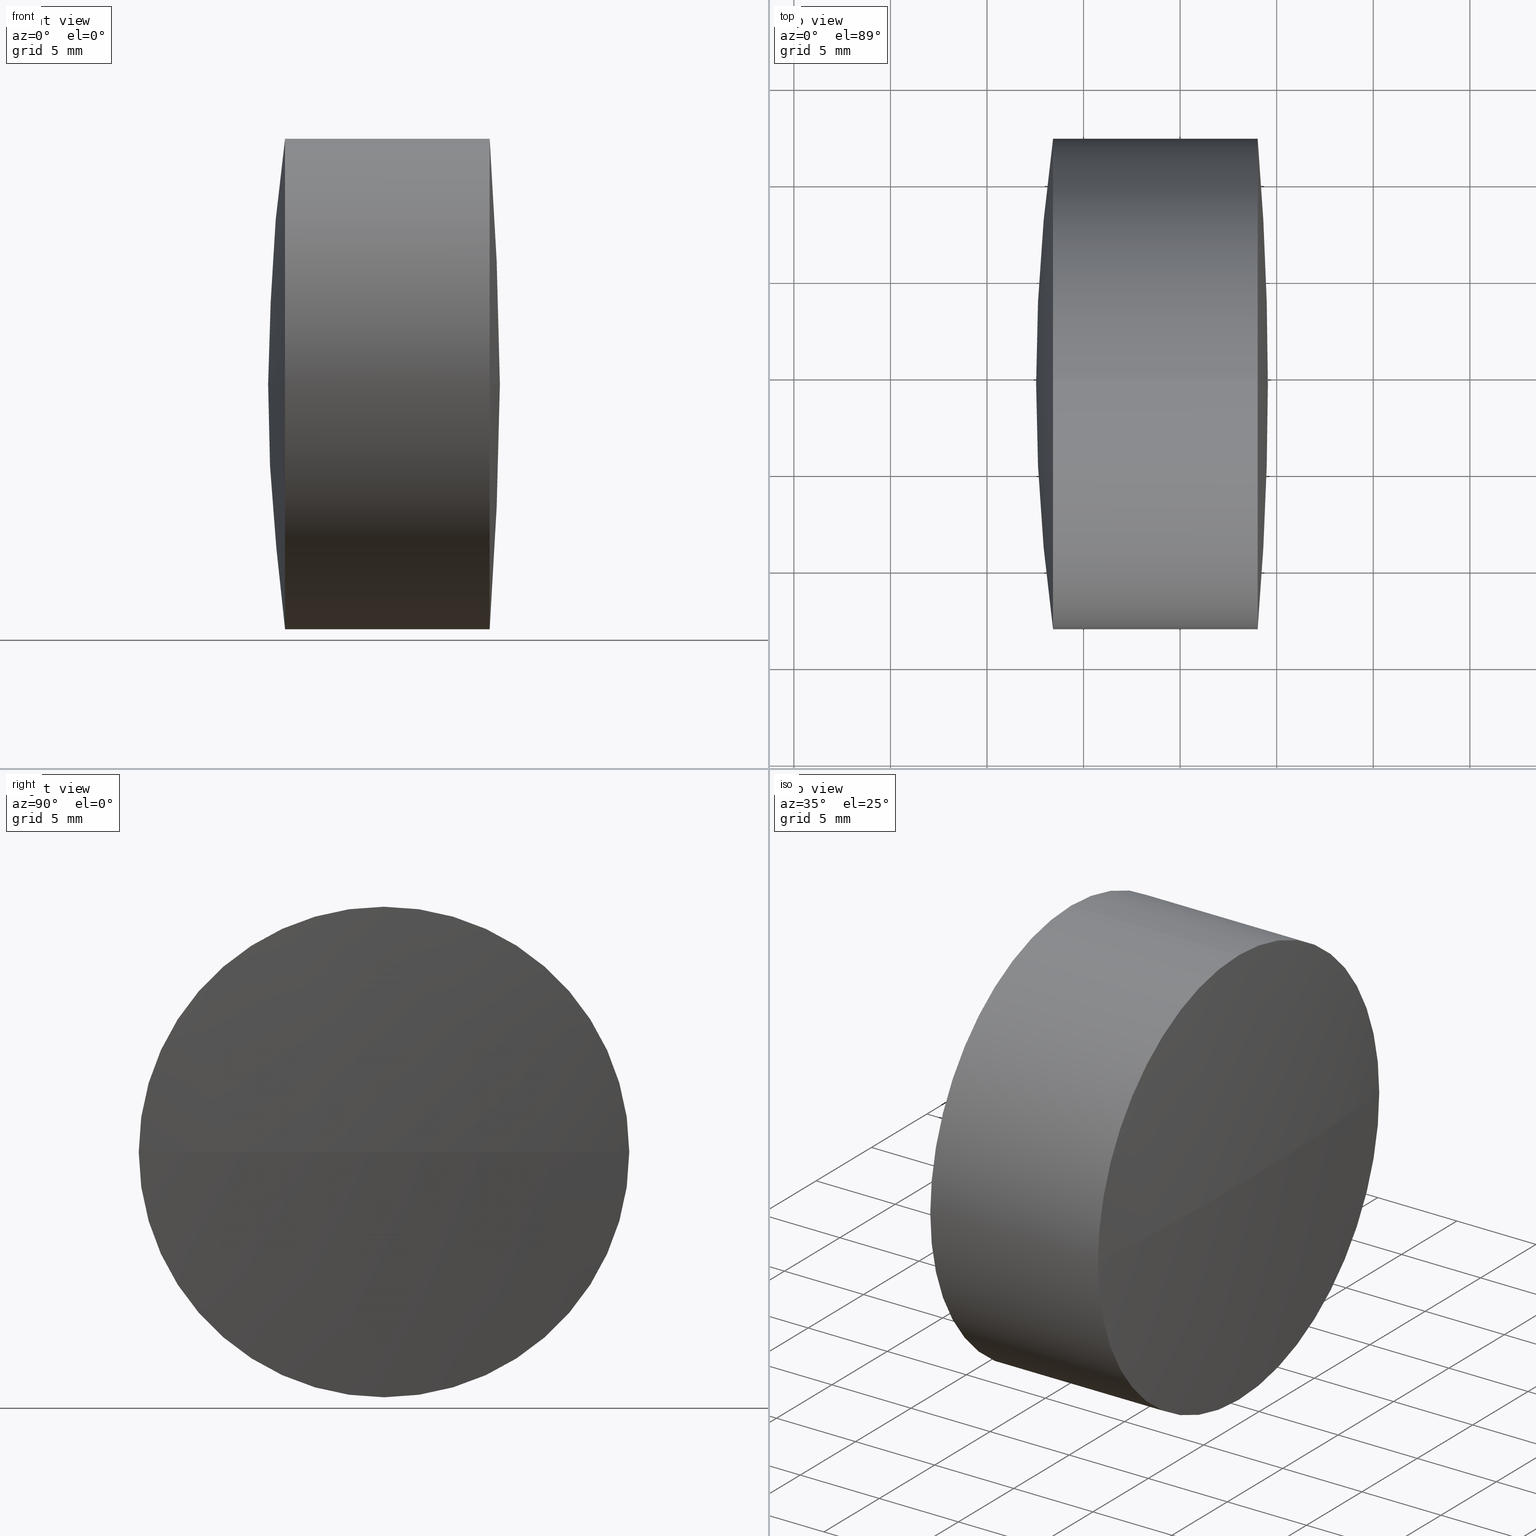
[diagram: canonical four-view strip — front | top / right | iso, engineering-drawing reading convention]
A machine part, canonical four-view strip (front | top / right | iso — engineering-drawing reading convention). The complete STEP part file that produces these views, byte-faithful:
ISO-10303-21;
HEADER;
FILE_DESCRIPTION (( 'STEP AP203' ),
    '1' );
FILE_NAME ('145278.STEP',
    '2024-05-11T08:22:23',
    ( '' ),
    ( '' ),
    'SwSTEP 2.0',
    'SolidWorks 2020',
    '' );
FILE_SCHEMA (( 'CONFIG_CONTROL_DESIGN' ));
ENDSEC;

DATA;
#1 = MANIFOLD_SOLID_BREP ( '145278a-1-solid1', #385 ) ;
#2 = CIRCLE ( 'NONE', #123, 48.17999999999999972 ) ;
#3 = AXIS2_PLACEMENT_3D ( 'NONE', #295, #85, #160 ) ;
#4 = DIRECTION ( 'NONE',  ( -1.000000000000000000, -0.000000000000000000, -0.000000000000000000 ) ) ;
#5 = ORIENTED_EDGE ( 'NONE', *, *, #72, .T. ) ;
#6 = CARTESIAN_POINT ( 'NONE',  ( -90.98594420630271884, 14.56038547118956927, 0.000000000000000000 ) ) ;
#7 = PRODUCT ( '145278', '145278', '', ( #93 ) ) ;
#8 = VERTEX_POINT ( 'NONE', #307 ) ;
#9 = VERTEX_POINT ( 'NONE', #135 ) ;
#10 = FACE_OUTER_BOUND ( 'NONE', #413, .T. ) ;
#11 = APPROVAL_PERSON_ORGANIZATION ( #234, #74, #297 ) ;
#12 = ORIENTED_EDGE ( 'NONE', *, *, #36, .F. ) ;
#13 = DIRECTION ( 'NONE',  ( -0.000000000000000000, 0.000000000000000000, 1.000000000000000000 ) ) ;
#14 = CARTESIAN_POINT ( 'NONE',  ( -96.16127642721875191, 27.26038547118956501, 0.000000000000000000 ) ) ;
#15 = VERTEX_POINT ( 'NONE', #348 ) ;
#16 = EDGE_CURVE ( 'NONE', #212, #103, #419, .T. ) ;
#17 = DIRECTION ( 'NONE',  ( 0.000000000000000000, 0.000000000000000000, 1.000000000000000000 ) ) ;
#18 = CARTESIAN_POINT ( 'NONE',  ( -96.16127642721875191, 14.56038547118957105, -12.69999999999999929 ) ) ;
#19 = DIRECTION ( 'NONE',  ( 0.000000000000000000, 1.224646799147353207E-16, -1.000000000000000000 ) ) ;
#20 = CARTESIAN_POINT ( 'NONE',  ( -90.98594420630271884, 14.56038547118956927, 0.000000000000000000 ) ) ;
#21 = DIRECTION ( 'NONE',  ( -0.000000000000000000, 0.000000000000000000, -1.000000000000000000 ) ) ;
#22 = APPROVAL_DATE_TIME ( #201, #351 ) ;
#23 = DIRECTION ( 'NONE',  ( 0.000000000000000000, 0.000000000000000000, 1.000000000000000000 ) ) ;
#24 = SPHERICAL_SURFACE ( 'NONE', #266, 48.17999999999999972 ) ;
#25 = PERSON_AND_ORGANIZATION ( #176, #395 ) ;
#26 = CIRCLE ( 'NONE', #374, 48.17999999999999972 ) ;
#27 = AXIS2_PLACEMENT_3D ( 'NONE', #327, #365, #156 ) ;
#28 = CARTESIAN_POINT ( 'NONE',  ( -243.2773175667133785, 14.56038547118956927, 0.000000000000000000 ) ) ;
#29 = APPROVAL_STATUS ( 'not_yet_approved' ) ;
#30 = CALENDAR_DATE ( 2024, 11, 5 ) ;
#31 = ORIENTED_EDGE ( 'NONE', *, *, #279, .T. ) ;
#32 = CARTESIAN_POINT ( 'NONE',  ( -142.6373175667134205, 14.56038547118956927, 0.000000000000000000 ) ) ;
#33 = CIRCLE ( 'NONE', #27, 12.69999999999999929 ) ;
#34 = ORIENTED_EDGE ( 'NONE', *, *, #446, .T. ) ;
#35 = EDGE_CURVE ( 'NONE', #250, #46, #225, .T. ) ;
#36 = EDGE_CURVE ( 'NONE', #220, #15, #314, .T. ) ;
#37 = DIRECTION ( 'NONE',  ( 0.000000000000000000, 0.000000000000000000, 1.000000000000000000 ) ) ;
#38 = LOCAL_TIME ( 16, 22, 23.00000000000000000, #439 ) ;
#39 = DIRECTION ( 'NONE',  ( -1.000000000000000000, -0.000000000000000000, -0.000000000000000000 ) ) ;
#40 = EDGE_CURVE ( 'NONE', #276, #412, #244, .T. ) ;
#41 = VECTOR ( 'NONE', #228, 1000.000000000000000 ) ;
#42 = CC_DESIGN_PERSON_AND_ORGANIZATION_ASSIGNMENT ( #25, #333, ( #423 ) ) ;
#43 = ORIENTED_EDGE ( 'NONE', *, *, #316, .F. ) ;
#44 = DIRECTION ( 'NONE',  ( 0.000000000000000000, 1.000000000000000000, 1.224646799147353207E-16 ) ) ;
#45 = VERTEX_POINT ( 'NONE', #64 ) ;
#46 = VERTEX_POINT ( 'NONE', #203 ) ;
#47 = CARTESIAN_POINT ( 'NONE',  ( -142.6373175667134205, 14.56038547118956927, 0.000000000000000000 ) ) ;
#48 = CC_DESIGN_APPROVAL ( #74, ( #423 ) ) ;
#49 = CARTESIAN_POINT ( 'NONE',  ( -90.98594420630271884, 14.56038547118957105, -12.69999999999999929 ) ) ;
#50 = ORIENTED_EDGE ( 'NONE', *, *, #446, .F. ) ;
#51 = CARTESIAN_POINT ( 'NONE',  ( -102.4573175667134137, 14.56038547118956927, 0.000000000000000000 ) ) ;
#52 = AXIS2_PLACEMENT_3D ( 'NONE', #270, #69, #37 ) ;
#53 =( NAMED_UNIT ( * ) SI_UNIT ( $, .STERADIAN. ) SOLID_ANGLE_UNIT ( ) );
#54 = CARTESIAN_POINT ( 'NONE',  ( -102.4573175667134137, 14.56038547118956927, 12.69999999999999929 ) ) ;
#55 = FACE_OUTER_BOUND ( 'NONE', #428, .T. ) ;
#56 = FACE_OUTER_BOUND ( 'NONE', #96, .T. ) ;
#57 =( NAMED_UNIT ( * ) PLANE_ANGLE_UNIT ( ) SI_UNIT ( $, .RADIAN. ) );
#58 = APPLICATION_PROTOCOL_DEFINITION ( 'international standard', 'config_control_design', 1994, #73 ) ;
#59 = CARTESIAN_POINT ( 'NONE',  ( -94.45731756671341373, 14.56038547118957283, 0.000000000000000000 ) ) ;
#60 = DIRECTION ( 'NONE',  ( 0.000000000000000000, 1.224646799147353207E-16, -1.000000000000000000 ) ) ;
#61 = DATE_TIME_ROLE ( 'classification_date' ) ;
#62 = PERSON_AND_ORGANIZATION ( #176, #395 ) ;
#63 = ORIENTED_EDGE ( 'NONE', *, *, #309, .F. ) ;
#64 = CARTESIAN_POINT ( 'NONE',  ( -102.4573175667134137, 14.56038547118957460, 0.000000000000000000 ) ) ;
#65 = EDGE_CURVE ( 'NONE', #112, #204, #26, .T. ) ;
#66 = ORIENTED_EDGE ( 'NONE', *, *, #316, .T. ) ;
#67 = EDGE_CURVE ( 'NONE', #445, #276, #100, .T. ) ;
#68 = EDGE_CURVE ( 'NONE', #9, #8, #148, .T. ) ;
#69 = DIRECTION ( 'NONE',  ( -1.000000000000000000, -0.000000000000000000, -0.000000000000000000 ) ) ;
#70 = AXIS2_PLACEMENT_3D ( 'NONE', #51, #330, #17 ) ;
#71 = AXIS2_PLACEMENT_3D ( 'NONE', #303, #438, #86 ) ;
#72 = EDGE_CURVE ( 'NONE', #153, #276, #106, .T. ) ;
#73 = APPLICATION_CONTEXT ( 'configuration controlled 3d designs of mechanical parts and assemblies' ) ;
#74 = APPROVAL ( #29, 'δָ��' ) ;
#75 = ORIENTED_EDGE ( 'NONE', *, *, #191, .T. ) ;
#76 = CARTESIAN_POINT ( 'NONE',  ( -90.98594420630271884, 14.56038547118956927, 0.000000000000000000 ) ) ;
#77 = VECTOR ( 'NONE', #213, 1000.000000000000000 ) ;
#78 = EDGE_LOOP ( 'NONE', ( #342, #357, #113, #187, #421, #79 ) ) ;
#79 = ORIENTED_EDGE ( 'NONE', *, *, #40, .F. ) ;
#80 = CARTESIAN_POINT ( 'NONE',  ( -142.6373175667134205, 14.56038547118956927, 0.000000000000000000 ) ) ;
#81 = ORIENTED_EDGE ( 'NONE', *, *, #67, .T. ) ;
#82 = DIRECTION ( 'NONE',  ( 0.000000000000000000, 0.000000000000000000, 1.000000000000000000 ) ) ;
#83 = CARTESIAN_POINT ( 'NONE',  ( -90.98594420630271884, 14.56038547118956927, 0.000000000000000000 ) ) ;
#84 = DIRECTION ( 'NONE',  ( -0.000000000000000000, 0.000000000000000000, -1.000000000000000000 ) ) ;
#85 = DIRECTION ( 'NONE',  ( -0.000000000000000000, 0.000000000000000000, -1.000000000000000000 ) ) ;
#86 = DIRECTION ( 'NONE',  ( 0.000000000000000000, 1.000000000000000000, 0.000000000000000000 ) ) ;
#87 = PERSON_AND_ORGANIZATION ( #176, #395 ) ;
#88 = DIRECTION ( 'NONE',  ( -1.000000000000000000, -0.000000000000000000, -0.000000000000000000 ) ) ;
#89 = DIRECTION ( 'NONE',  ( 0.000000000000000000, 1.000000000000000000, 0.000000000000000000 ) ) ;
#90 = PERSON_AND_ORGANIZATION ( #176, #395 ) ;
#91 = CYLINDRICAL_SURFACE ( 'NONE', #215, 12.69999999999999929 ) ;
#92 = CARTESIAN_POINT ( 'NONE',  ( -10.05731756671340804, 14.56038547118956927, 0.000000000000000000 ) ) ;
#93 = MECHANICAL_CONTEXT ( 'NONE', #73, 'mechanical' ) ;
#94 = UNCERTAINTY_MEASURE_WITH_UNIT (LENGTH_MEASURE( 1.000000000000000082E-05 ), #261, 'distance_accuracy_value', 'NONE');
#95 = APPROVAL_ROLE ( '' ) ;
#96 = EDGE_LOOP ( 'NONE', ( #184, #182, #172, #147 ) ) ;
#97 = DIRECTION ( 'NONE',  ( 0.000000000000000000, 1.000000000000000000, 1.224646799147353207E-16 ) ) ;
#98 = EDGE_CURVE ( 'NONE', #271, #9, #188, .T. ) ;
#99 = ORIENTED_EDGE ( 'NONE', *, *, #16, .T. ) ;
#100 = LINE ( 'NONE', #238, #268 ) ;
#101 = ORIENTED_EDGE ( 'NONE', *, *, #175, .T. ) ;
#102 = APPROVAL_PERSON_ORGANIZATION ( #62, #351, #398 ) ;
#103 = VERTEX_POINT ( 'NONE', #320 ) ;
#104 = AXIS2_PLACEMENT_3D ( 'NONE', #183, #287, #384 ) ;
#105 = CIRCLE ( 'NONE', #353, 12.69999999999999929 ) ;
#106 = CIRCLE ( 'NONE', #241, 12.69999999999999929 ) ;
#107 = EDGE_CURVE ( 'NONE', #112, #271, #364, .T. ) ;
#108 = EDGE_CURVE ( 'NONE', #103, #391, #224, .T. ) ;
#109 = DIRECTION ( 'NONE',  ( 0.000000000000000000, 0.000000000000000000, 1.000000000000000000 ) ) ;
#110 = ORIENTED_EDGE ( 'NONE', *, *, #128, .T. ) ;
#111 = DIRECTION ( 'NONE',  ( 1.000000000000000000, 0.000000000000000000, 0.000000000000000000 ) ) ;
#112 = VERTEX_POINT ( 'NONE', #331 ) ;
#113 = ORIENTED_EDGE ( 'NONE', *, *, #98, .T. ) ;
#114 = DIRECTION ( 'NONE',  ( -0.000000000000000000, 0.000000000000000000, 1.000000000000000000 ) ) ;
#115 = EDGE_LOOP ( 'NONE', ( #389, #424, #31, #99 ) ) ;
#116 = DIRECTION ( 'NONE',  ( -1.000000000000000000, -0.000000000000000000, -0.000000000000000000 ) ) ;
#117 = CARTESIAN_POINT ( 'NONE',  ( -101.5803747708955740, 1.860385471189575091, -1.555301434917137841E-15 ) ) ;
#118 = CARTESIAN_POINT ( 'NONE',  ( -96.16127642721875191, 14.56038547118956927, 0.000000000000000000 ) ) ;
#119 = CARTESIAN_POINT ( 'NONE',  ( -96.16127642721875191, 14.56038547118956927, 0.000000000000000000 ) ) ;
#120 = CARTESIAN_POINT ( 'NONE',  ( -90.98594420630270463, 27.26038547118939093, 0.000000000000000000 ) ) ;
#121 = LOCAL_TIME ( 16, 22, 23.00000000000000000, #265 ) ;
#122 = DATE_AND_TIME ( #166, #381 ) ;
#123 = AXIS2_PLACEMENT_3D ( 'NONE', #328, #19, #44 ) ;
#124 = DIRECTION ( 'NONE',  ( -1.000000000000000000, -0.000000000000000000, -0.000000000000000000 ) ) ;
#125 = AXIS2_PLACEMENT_3D ( 'NONE', #292, #431, #396 ) ;
#126 = CARTESIAN_POINT ( 'NONE',  ( 0.000000000000000000, 0.000000000000000000, 0.000000000000000000 ) ) ;
#127 = PERSON_AND_ORGANIZATION_ROLE ( 'creator' ) ;
#128 = EDGE_CURVE ( 'NONE', #15, #426, #174, .T. ) ;
#129 = CC_DESIGN_PERSON_AND_ORGANIZATION_ASSIGNMENT ( #163, #127, ( #318 ) ) ;
#130 = DIRECTION ( 'NONE',  ( 0.000000000000000000, 0.000000000000000000, 1.000000000000000000 ) ) ;
#131 = FACE_OUTER_BOUND ( 'NONE', #136, .T. ) ;
#132 = DATE_AND_TIME ( #407, #38 ) ;
#133 = APPROVAL_DATE_TIME ( #375, #74 ) ;
#134 = AXIS2_PLACEMENT_3D ( 'NONE', #126, #404, #340 ) ;
#135 = CARTESIAN_POINT ( 'NONE',  ( -96.16127642721875191, 14.56038547118956927, 12.69999999999999929 ) ) ;
#136 = EDGE_LOOP ( 'NONE', ( #180, #286, #378, #443 ) ) ;
#137 = DIRECTION ( 'NONE',  ( 0.000000000000000000, 0.000000000000000000, 1.000000000000000000 ) ) ;
#138 = ORIENTED_EDGE ( 'NONE', *, *, #272, .T. ) ;
#139 = EDGE_LOOP ( 'NONE', ( #388, #167, #329, #149 ) ) ;
#140 = CIRCLE ( 'NONE', #211, 12.69999999999999929 ) ;
#141 = EDGE_CURVE ( 'NONE', #8, #153, #425, .T. ) ;
#142 = ADVANCED_FACE ( 'NONE', ( #10 ), #359, .T. ) ;
#143 = CC_DESIGN_PERSON_AND_ORGANIZATION_ASSIGNMENT ( #90, #227, ( #423 ) ) ;
#144 = AXIS2_PLACEMENT_3D ( 'NONE', #6, #4, #155 ) ;
#145 = AXIS2_PLACEMENT_3D ( 'NONE', #20, #124, #82 ) ;
#146 = CARTESIAN_POINT ( 'NONE',  ( -96.16127642721875191, 14.56038547118956927, 0.000000000000000000 ) ) ;
#147 = ORIENTED_EDGE ( 'NONE', *, *, #367, .F. ) ;
#148 = LINE ( 'NONE', #54, #77 ) ;
#149 = ORIENTED_EDGE ( 'NONE', *, *, #223, .T. ) ;
#150 = LOCAL_TIME ( 16, 22, 23.00000000000000000, #302 ) ;
#151 = VERTEX_POINT ( 'NONE', #49 ) ;
#152 = DIRECTION ( 'NONE',  ( -1.000000000000000000, -0.000000000000000000, -0.000000000000000000 ) ) ;
#153 = VERTEX_POINT ( 'NONE', #324 ) ;
#154 = DIRECTION ( 'NONE',  ( 0.000000000000000000, 1.000000000000000000, 0.000000000000000000 ) ) ;
#155 = DIRECTION ( 'NONE',  ( 0.000000000000000000, 0.000000000000000000, 1.000000000000000000 ) ) ;
#156 = DIRECTION ( 'NONE',  ( 0.000000000000000000, 0.000000000000000000, 1.000000000000000000 ) ) ;
#157 = FACE_OUTER_BOUND ( 'NONE', #360, .T. ) ;
#158 = ADVANCED_FACE ( 'NONE', ( #354 ), #322, .T. ) ;
#159 = ADVANCED_FACE ( 'NONE', ( #217 ), #427, .T. ) ;
#160 = DIRECTION ( 'NONE',  ( 0.000000000000000000, 1.000000000000000000, 0.000000000000000000 ) ) ;
#161 = CIRCLE ( 'NONE', #145, 12.69999999999999929 ) ;
#162 = DIRECTION ( 'NONE',  ( 0.000000000000000000, 0.000000000000000000, 1.000000000000000000 ) ) ;
#163 = PERSON_AND_ORGANIZATION ( #176, #395 ) ;
#164 = FACE_OUTER_BOUND ( 'NONE', #139, .T. ) ;
#165 = COORDINATED_UNIVERSAL_TIME_OFFSET ( 8, 0, .AHEAD. ) ;
#166 = CALENDAR_DATE ( 2024, 11, 5 ) ;
#167 = ORIENTED_EDGE ( 'NONE', *, *, #192, .T. ) ;
#168 = EDGE_LOOP ( 'NONE', ( #75, #66, #346, #247, #441, #325 ) ) ;
#169 = DIRECTION ( 'NONE',  ( -0.000000000000000000, 0.000000000000000000, 1.000000000000000000 ) ) ;
#170 = ORIENTED_EDGE ( 'NONE', *, *, #128, .F. ) ;
#171 = DIRECTION ( 'NONE',  ( 0.000000000000000000, 0.000000000000000000, 1.000000000000000000 ) ) ;
#172 = ORIENTED_EDGE ( 'NONE', *, *, #239, .F. ) ;
#173 = CC_DESIGN_APPROVAL ( #310, ( #318 ) ) ;
#174 = CIRCLE ( 'NONE', #144, 12.69999999999999929 ) ;
#175 = EDGE_CURVE ( 'NONE', #220, #411, #418, .T. ) ;
#176 = PERSON ( 'δָ��', 'δָ��', 'δָ��', ('δָ��'), ('δָ��'), ('δָ��') ) ;
#177 = DIRECTION ( 'NONE',  ( -0.000000000000000000, 0.000000000000000000, -1.000000000000000000 ) ) ;
#178 = AXIS2_PLACEMENT_3D ( 'NONE', #291, #248, #422 ) ;
#179 = CIRCLE ( 'NONE', #259, 92.40000000000000568 ) ;
#180 = ORIENTED_EDGE ( 'NONE', *, *, #175, .F. ) ;
#181 = CARTESIAN_POINT ( 'NONE',  ( -101.5803747708955882, 14.56038547118956927, 0.000000000000000000 ) ) ;
#182 = ORIENTED_EDGE ( 'NONE', *, *, #107, .T. ) ;
#183 = CARTESIAN_POINT ( 'NONE',  ( -101.5803747708955882, 14.56038547118956927, 0.000000000000000000 ) ) ;
#184 = ORIENTED_EDGE ( 'NONE', *, *, #65, .F. ) ;
#185 = DIRECTION ( 'NONE',  ( -0.000000000000000000, 0.000000000000000000, -1.000000000000000000 ) ) ;
#186 = DIRECTION ( 'NONE',  ( 0.000000000000000000, 1.000000000000000000, 0.000000000000000000 ) ) ;
#187 = ORIENTED_EDGE ( 'NONE', *, *, #68, .T. ) ;
#188 = CIRCLE ( 'NONE', #178, 12.69999999999999929 ) ;
#189 = CARTESIAN_POINT ( 'NONE',  ( -90.45731756671344215, 14.56038547118957815, 0.000000000000000000 ) ) ;
#190 = DIRECTION ( 'NONE',  ( 0.000000000000000000, 1.000000000000000000, 1.224646799147353207E-16 ) ) ;
#191 = EDGE_CURVE ( 'NONE', #411, #151, #288, .T. ) ;
#192 = EDGE_CURVE ( 'NONE', #250, #103, #2, .T. ) ;
#193 = CYLINDRICAL_SURFACE ( 'NONE', #242, 12.69999999999999929 ) ;
#194 = DIRECTION ( 'NONE',  ( -0.000000000000000000, 0.000000000000000000, -1.000000000000000000 ) ) ;
#195 = CALENDAR_DATE ( 2024, 11, 5 ) ;
#196 = CARTESIAN_POINT ( 'NONE',  ( -96.16127642721875191, 14.56038547118956927, 0.000000000000000000 ) ) ;
#197 = FACE_OUTER_BOUND ( 'NONE', #115, .T. ) ;
#198 = AXIS2_PLACEMENT_3D ( 'NONE', #236, #377, #137 ) ;
#199 = LINE ( 'NONE', #263, #41 ) ;
#200 = APPLICATION_PROTOCOL_DEFINITION ( 'international standard', 'config_control_design', 1994, #282 ) ;
#201 = DATE_AND_TIME ( #306, #150 ) ;
#202 = ORIENTED_EDGE ( 'NONE', *, *, #98, .F. ) ;
#203 = CARTESIAN_POINT ( 'NONE',  ( -96.16127642721875191, 27.26038547118956501, 0.000000000000000000 ) ) ;
#204 = VERTEX_POINT ( 'NONE', #14 ) ;
#205 = AXIS2_PLACEMENT_3D ( 'NONE', #284, #114, #111 ) ;
#206 = AXIS2_PLACEMENT_3D ( 'NONE', #47, #185, #154 ) ;
#207 = CARTESIAN_POINT ( 'NONE',  ( -142.6373175667134205, 14.56038547118956927, 0.000000000000000000 ) ) ;
#208 = EDGE_CURVE ( 'NONE', #9, #204, #409, .T. ) ;
#209 = DESIGN_CONTEXT ( 'detailed design', #282, 'design' ) ;
#210 = PRODUCT_DEFINITION_SHAPE ( 'NONE', 'NONE',  #318 ) ;
#211 = AXIS2_PLACEMENT_3D ( 'NONE', #119, #116, #23 ) ;
#212 = VERTEX_POINT ( 'NONE', #394 ) ;
#213 = DIRECTION ( 'NONE',  ( -1.000000000000000000, -0.000000000000000000, -0.000000000000000000 ) ) ;
#214 = CIRCLE ( 'NONE', #337, 12.69999999999999929 ) ;
#215 = AXIS2_PLACEMENT_3D ( 'NONE', #429, #226, #130 ) ;
#216 = ORIENTED_EDGE ( 'NONE', *, *, #141, .F. ) ;
#217 = FACE_OUTER_BOUND ( 'NONE', #275, .T. ) ;
#218 = ORIENTED_EDGE ( 'NONE', *, *, #208, .F. ) ;
#219 = CARTESIAN_POINT ( 'NONE',  ( -10.05731756671340804, 14.56038547118956927, 0.000000000000000000 ) ) ;
#220 = VERTEX_POINT ( 'NONE', #189 ) ;
#221 = CARTESIAN_POINT ( 'NONE',  ( -101.5803747708955882, 14.56038547118957105, -12.69999999999999929 ) ) ;
#222 = DIRECTION ( 'NONE',  ( -1.000000000000000000, -0.000000000000000000, -0.000000000000000000 ) ) ;
#223 = EDGE_CURVE ( 'NONE', #391, #46, #214, .T. ) ;
#224 = CIRCLE ( 'NONE', #298, 12.69999999999999929 ) ;
#225 = CIRCLE ( 'NONE', #399, 48.17999999999999972 ) ;
#226 = DIRECTION ( 'NONE',  ( -1.000000000000000000, -0.000000000000000000, -0.000000000000000000 ) ) ;
#227 = PERSON_AND_ORGANIZATION_ROLE ( 'creator' ) ;
#228 = DIRECTION ( 'NONE',  ( -1.000000000000000000, -0.000000000000000000, -0.000000000000000000 ) ) ;
#229 = DIRECTION ( 'NONE',  ( -1.000000000000000000, -0.000000000000000000, -0.000000000000000000 ) ) ;
#230 = APPROVAL_STATUS ( 'not_yet_approved' ) ;
#231 = CARTESIAN_POINT ( 'NONE',  ( -101.5803747708955882, 14.56038547118956927, 0.000000000000000000 ) ) ;
#232 = SECURITY_CLASSIFICATION ( '', '', #304 ) ;
#233 = AXIS2_PLACEMENT_3D ( 'NONE', #280, #177, #420 ) ;
#234 = PERSON_AND_ORGANIZATION ( #176, #395 ) ;
#235 = ORIENTED_EDGE ( 'NONE', *, *, #246, .T. ) ;
#236 = CARTESIAN_POINT ( 'NONE',  ( -101.5803747708955882, 14.56038547118956927, 0.000000000000000000 ) ) ;
#237 = ORIENTED_EDGE ( 'NONE', *, *, #141, .T. ) ;
#238 = CARTESIAN_POINT ( 'NONE',  ( -102.4573175667134137, 14.56038547118957105, -12.69999999999999929 ) ) ;
#239 = EDGE_CURVE ( 'NONE', #445, #271, #140, .T. ) ;
#240 = ADVANCED_FACE ( 'NONE', ( #157 ), #254, .T. ) ;
#241 = AXIS2_PLACEMENT_3D ( 'NONE', #181, #152, #109 ) ;
#242 = AXIS2_PLACEMENT_3D ( 'NONE', #332, #444, #162 ) ;
#243 = APPROVAL_PERSON_ORGANIZATION ( #87, #310, #95 ) ;
#244 = CIRCLE ( 'NONE', #198, 12.69999999999999929 ) ;
#245 = DIRECTION ( 'NONE',  ( 0.000000000000000000, 1.224646799147353207E-16, -1.000000000000000000 ) ) ;
#246 = EDGE_CURVE ( 'NONE', #412, #8, #380, .T. ) ;
#247 = ORIENTED_EDGE ( 'NONE', *, *, #223, .F. ) ;
#248 = DIRECTION ( 'NONE',  ( -1.000000000000000000, -0.000000000000000000, -0.000000000000000000 ) ) ;
#249 = AXIS2_PLACEMENT_3D ( 'NONE', #219, #84, #186 ) ;
#250 = VERTEX_POINT ( 'NONE', #59 ) ;
#251 = ORIENTED_EDGE ( 'NONE', *, *, #367, .T. ) ;
#252 = DIRECTION ( 'NONE',  ( -1.000000000000000000, -0.000000000000000000, -0.000000000000000000 ) ) ;
#253 = ORIENTED_EDGE ( 'NONE', *, *, #16, .F. ) ;
#254 = SPHERICAL_SURFACE ( 'NONE', #3, 48.17999999999999972 ) ;
#255 = ADVANCED_FACE ( 'NONE', ( #392 ), #91, .T. ) ;
#256 = DIRECTION ( 'NONE',  ( 0.000000000000000000, 0.000000000000000000, 1.000000000000000000 ) ) ;
#257 = DIRECTION ( 'NONE',  ( 0.000000000000000000, 0.000000000000000000, -1.000000000000000000 ) ) ;
#258 = PERSON_AND_ORGANIZATION ( #176, #395 ) ;
#259 = AXIS2_PLACEMENT_3D ( 'NONE', #361, #13, #437 ) ;
#260 = DIRECTION ( 'NONE',  ( 0.000000000000000000, 0.000000000000000000, 1.000000000000000000 ) ) ;
#261 =( LENGTH_UNIT ( ) NAMED_UNIT ( * ) SI_UNIT ( .MILLI., .METRE. ) );
#262 = COORDINATED_UNIVERSAL_TIME_OFFSET ( 8, 0, .AHEAD. ) ;
#263 = CARTESIAN_POINT ( 'NONE',  ( -94.45731756671341373, 14.56038547118956927, 12.69999999999999929 ) ) ;
#264 = CARTESIAN_POINT ( 'NONE',  ( -96.16127642721875191, 14.56038547118956927, 12.69999999999999929 ) ) ;
#265 = COORDINATED_UNIVERSAL_TIME_OFFSET ( 8, 0, .AHEAD. ) ;
#266 = AXIS2_PLACEMENT_3D ( 'NONE', #362, #257, #372 ) ;
#267 = PERSON_AND_ORGANIZATION_ROLE ( 'classification_officer' ) ;
#268 = VECTOR ( 'NONE', #379, 1000.000000000000000 ) ;
#269 = APPROVAL_DATE_TIME ( #408, #310 ) ;
#270 = CARTESIAN_POINT ( 'NONE',  ( -96.16127642721875191, 14.56038547118956927, 0.000000000000000000 ) ) ;
#271 = VERTEX_POINT ( 'NONE', #300 ) ;
#272 = EDGE_CURVE ( 'NONE', #151, #15, #161, .T. ) ;
#273 = DIRECTION ( 'NONE',  ( 1.000000000000000000, 0.000000000000000000, 0.000000000000000000 ) ) ;
#274 = CC_DESIGN_DATE_AND_TIME_ASSIGNMENT ( #132, #341, ( #318 ) ) ;
#275 = EDGE_LOOP ( 'NONE', ( #50, #235, #237, #383 ) ) ;
#276 = VERTEX_POINT ( 'NONE', #221 ) ;
#277 = CC_DESIGN_APPROVAL ( #351, ( #232 ) ) ;
#278 = ADVANCED_BREP_SHAPE_REPRESENTATION ( '145278', ( #313, #1, #134 ), #315 ) ;
#279 = EDGE_CURVE ( 'NONE', #46, #212, #33, .T. ) ;
#280 = CARTESIAN_POINT ( 'NONE',  ( -10.05731756671340804, 14.56038547118956927, 0.000000000000000000 ) ) ;
#281 = PRODUCT_RELATED_PRODUCT_CATEGORY ( 'detail', '', ( #7 ) ) ;
#282 = APPLICATION_CONTEXT ( 'configuration controlled 3d designs of mechanical parts and assemblies' ) ;
#283 = ORIENTED_EDGE ( 'NONE', *, *, #65, .T. ) ;
#284 = CARTESIAN_POINT ( 'NONE',  ( -243.2773175667133785, 14.56038547118956927, 0.000000000000000000 ) ) ;
#285 = EDGE_LOOP ( 'NONE', ( #251, #81, #352, #216, #308, #323 ) ) ;
#286 = ORIENTED_EDGE ( 'NONE', *, *, #36, .T. ) ;
#287 = DIRECTION ( 'NONE',  ( -1.000000000000000000, -0.000000000000000000, -0.000000000000000000 ) ) ;
#288 = CIRCLE ( 'NONE', #349, 12.69999999999999929 ) ;
#289 = ORIENTED_EDGE ( 'NONE', *, *, #335, .T. ) ;
#290 = CYLINDRICAL_SURFACE ( 'NONE', #70, 12.69999999999999929 ) ;
#291 = CARTESIAN_POINT ( 'NONE',  ( -96.16127642721875191, 14.56038547118956927, 0.000000000000000000 ) ) ;
#292 = CARTESIAN_POINT ( 'NONE',  ( -96.16127642721875191, 14.56038547118956927, 0.000000000000000000 ) ) ;
#293 = CARTESIAN_POINT ( 'NONE',  ( -90.98594420630271884, 14.56038547118956927, 12.69999999999999929 ) ) ;
#294 = APPROVAL_STATUS ( 'not_yet_approved' ) ;
#295 = CARTESIAN_POINT ( 'NONE',  ( -142.6373175667134205, 14.56038547118956927, 0.000000000000000000 ) ) ;
#296 = DIRECTION ( 'NONE',  ( 0.000000000000000000, 1.000000000000000000, 1.224646799147353454E-16 ) ) ;
#297 = APPROVAL_ROLE ( '' ) ;
#298 = AXIS2_PLACEMENT_3D ( 'NONE', #146, #356, #387 ) ;
#299 = CIRCLE ( 'NONE', #125, 12.69999999999999929 ) ;
#300 = CARTESIAN_POINT ( 'NONE',  ( -96.16127642721875191, 1.860385471189574424, -1.555301434917137841E-15 ) ) ;
#301 = SPHERICAL_SURFACE ( 'NONE', #71, 48.17999999999999972 ) ;
#302 = COORDINATED_UNIVERSAL_TIME_OFFSET ( 8, 0, .AHEAD. ) ;
#303 = CARTESIAN_POINT ( 'NONE',  ( -142.6373175667134205, 14.56038547118956927, 0.000000000000000000 ) ) ;
#304 = SECURITY_CLASSIFICATION_LEVEL ( 'unclassified' ) ;
#305 = CC_DESIGN_SECURITY_CLASSIFICATION ( #232, ( #423 ) ) ;
#306 = CALENDAR_DATE ( 2024, 11, 5 ) ;
#307 = CARTESIAN_POINT ( 'NONE',  ( -101.5803747708955882, 14.56038547118956927, 12.69999999999999929 ) ) ;
#308 = ORIENTED_EDGE ( 'NONE', *, *, #68, .F. ) ;
#309 = EDGE_CURVE ( 'NONE', #153, #45, #179, .T. ) ;
#310 = APPROVAL ( #294, 'δָ��' ) ;
#311 = DIRECTION ( 'NONE',  ( 1.000000000000000000, 0.000000000000000000, 0.000000000000000000 ) ) ;
#312 = ORIENTED_EDGE ( 'NONE', *, *, #107, .F. ) ;
#313 = MANIFOLD_SOLID_BREP ( '145278b-1-solid1', #435 ) ;
#314 = CIRCLE ( 'NONE', #442, 152.8199999999999648 ) ;
#315 =( GEOMETRIC_REPRESENTATION_CONTEXT ( 3 ) GLOBAL_UNCERTAINTY_ASSIGNED_CONTEXT ( ( #94 ) ) GLOBAL_UNIT_ASSIGNED_CONTEXT ( ( #261, #57, #53 ) ) REPRESENTATION_CONTEXT ( 'NONE', 'WORKASPACE' ) );
#316 = EDGE_CURVE ( 'NONE', #151, #212, #403, .T. ) ;
#317 = AXIS2_PLACEMENT_3D ( 'NONE', #363, #222, #430 ) ;
#318 = PRODUCT_DEFINITION ( 'δ֪', '', #423, #209 ) ;
#319 = AXIS2_PLACEMENT_3D ( 'NONE', #28, #194, #89 ) ;
#320 = CARTESIAN_POINT ( 'NONE',  ( -96.16127642721875191, 1.860385471189574424, -1.555301434917137841E-15 ) ) ;
#321 = ORIENTED_EDGE ( 'NONE', *, *, #417, .F. ) ;
#322 = CYLINDRICAL_SURFACE ( 'NONE', #317, 12.69999999999999929 ) ;
#323 = ORIENTED_EDGE ( 'NONE', *, *, #208, .T. ) ;
#324 = CARTESIAN_POINT ( 'NONE',  ( -101.5803747708955740, 27.26038547118956501, 0.000000000000000000 ) ) ;
#325 = ORIENTED_EDGE ( 'NONE', *, *, #417, .T. ) ;
#326 = AXIS2_PLACEMENT_3D ( 'NONE', #92, #60, #296 ) ;
#327 = CARTESIAN_POINT ( 'NONE',  ( -96.16127642721875191, 14.56038547118956927, 0.000000000000000000 ) ) ;
#328 = CARTESIAN_POINT ( 'NONE',  ( -142.6373175667134205, 14.56038547118956927, 0.000000000000000000 ) ) ;
#329 = ORIENTED_EDGE ( 'NONE', *, *, #108, .T. ) ;
#330 = DIRECTION ( 'NONE',  ( -1.000000000000000000, -0.000000000000000000, -0.000000000000000000 ) ) ;
#331 = CARTESIAN_POINT ( 'NONE',  ( -94.45731756671341373, 14.56038547118957283, 0.000000000000000000 ) ) ;
#332 = CARTESIAN_POINT ( 'NONE',  ( -94.45731756671341373, 14.56038547118956927, 0.000000000000000000 ) ) ;
#333 = PERSON_AND_ORGANIZATION_ROLE ( 'design_supplier' ) ;
#334 = DIRECTION ( 'NONE',  ( -1.000000000000000000, -0.000000000000000000, -0.000000000000000000 ) ) ;
#335 = EDGE_CURVE ( 'NONE', #426, #391, #199, .T. ) ;
#336 = CARTESIAN_POINT ( 'NONE',  ( -243.2773175667133785, 14.56038547118956927, 0.000000000000000000 ) ) ;
#337 = AXIS2_PLACEMENT_3D ( 'NONE', #196, #334, #260 ) ;
#338 = FACE_OUTER_BOUND ( 'NONE', #285, .T. ) ;
#339 = DIRECTION ( 'NONE',  ( 0.000000000000000000, 1.000000000000000000, 0.000000000000000000 ) ) ;
#340 = DIRECTION ( 'NONE',  ( 1.000000000000000000, 0.000000000000000000, 0.000000000000000000 ) ) ;
#341 = DATE_TIME_ROLE ( 'creation_date' ) ;
#342 = ORIENTED_EDGE ( 'NONE', *, *, #67, .F. ) ;
#343 = ADVANCED_FACE ( 'NONE', ( #56 ), #358, .T. ) ;
#344 = LOCAL_TIME ( 16, 22, 23.00000000000000000, #165 ) ;
#345 = DIRECTION ( 'NONE',  ( 0.000000000000000000, 1.224646799147353207E-16, -1.000000000000000000 ) ) ;
#346 = ORIENTED_EDGE ( 'NONE', *, *, #279, .F. ) ;
#347 = AXIS2_PLACEMENT_3D ( 'NONE', #80, #245, #190 ) ;
#348 = CARTESIAN_POINT ( 'NONE',  ( -90.98594420630270463, 1.860385471189745177, -1.555301434917116936E-15 ) ) ;
#349 = AXIS2_PLACEMENT_3D ( 'NONE', #76, #252, #390 ) ;
#350 = ADVANCED_FACE ( 'NONE', ( #338 ), #290, .T. ) ;
#351 = APPROVAL ( #230, 'δָ��' ) ;
#352 = ORIENTED_EDGE ( 'NONE', *, *, #72, .F. ) ;
#353 = AXIS2_PLACEMENT_3D ( 'NONE', #83, #229, #397 ) ;
#354 = FACE_OUTER_BOUND ( 'NONE', #168, .T. ) ;
#355 = ORIENTED_EDGE ( 'NONE', *, *, #108, .F. ) ;
#356 = DIRECTION ( 'NONE',  ( -1.000000000000000000, -0.000000000000000000, -0.000000000000000000 ) ) ;
#357 = ORIENTED_EDGE ( 'NONE', *, *, #239, .T. ) ;
#358 = SPHERICAL_SURFACE ( 'NONE', #206, 48.17999999999999972 ) ;
#359 = SPHERICAL_SURFACE ( 'NONE', #249, 92.40000000000000568 ) ;
#360 = EDGE_LOOP ( 'NONE', ( #312, #283, #218, #202 ) ) ;
#361 = CARTESIAN_POINT ( 'NONE',  ( -10.05731756671340804, 14.56038547118956927, 0.000000000000000000 ) ) ;
#362 = CARTESIAN_POINT ( 'NONE',  ( -142.6373175667134205, 14.56038547118956927, 0.000000000000000000 ) ) ;
#363 = CARTESIAN_POINT ( 'NONE',  ( -94.45731756671341373, 14.56038547118956927, 0.000000000000000000 ) ) ;
#364 = CIRCLE ( 'NONE', #347, 48.17999999999999972 ) ;
#365 = DIRECTION ( 'NONE',  ( -1.000000000000000000, -0.000000000000000000, -0.000000000000000000 ) ) ;
#366 = SPHERICAL_SURFACE ( 'NONE', #319, 152.8199999999999648 ) ;
#367 = EDGE_CURVE ( 'NONE', #204, #445, #299, .T. ) ;
#368 = CC_DESIGN_DATE_AND_TIME_ASSIGNMENT ( #122, #61, ( #232 ) ) ;
#369 = DIRECTION ( 'NONE',  ( 0.000000000000000000, 0.000000000000000000, 1.000000000000000000 ) ) ;
#370 = CIRCLE ( 'NONE', #326, 92.40000000000000568 ) ;
#371 = CARTESIAN_POINT ( 'NONE',  ( -94.45731756671341373, 14.56038547118957105, -12.69999999999999929 ) ) ;
#372 = DIRECTION ( 'NONE',  ( 0.000000000000000000, 1.000000000000000000, 0.000000000000000000 ) ) ;
#373 = PERSON_AND_ORGANIZATION ( #176, #395 ) ;
#374 = AXIS2_PLACEMENT_3D ( 'NONE', #32, #169, #311 ) ;
#375 = DATE_AND_TIME ( #30, #121 ) ;
#376 = ORIENTED_EDGE ( 'NONE', *, *, #40, .T. ) ;
#377 = DIRECTION ( 'NONE',  ( -1.000000000000000000, -0.000000000000000000, -0.000000000000000000 ) ) ;
#378 = ORIENTED_EDGE ( 'NONE', *, *, #272, .F. ) ;
#379 = DIRECTION ( 'NONE',  ( -1.000000000000000000, -0.000000000000000000, -0.000000000000000000 ) ) ;
#380 = CIRCLE ( 'NONE', #436, 12.69999999999999929 ) ;
#381 = LOCAL_TIME ( 16, 22, 23.00000000000000000, #262 ) ;
#382 = ADVANCED_FACE ( 'NONE', ( #55 ), #193, .T. ) ;
#383 = ORIENTED_EDGE ( 'NONE', *, *, #309, .T. ) ;
#384 = DIRECTION ( 'NONE',  ( 0.000000000000000000, 0.000000000000000000, 1.000000000000000000 ) ) ;
#385 = CLOSED_SHELL ( 'NONE', ( #350, #343, #142, #159, #240, #255 ) ) ;
#386 = EDGE_LOOP ( 'NONE', ( #12, #101, #321, #170 ) ) ;
#387 = DIRECTION ( 'NONE',  ( 0.000000000000000000, 0.000000000000000000, 1.000000000000000000 ) ) ;
#388 = ORIENTED_EDGE ( 'NONE', *, *, #35, .F. ) ;
#389 = ORIENTED_EDGE ( 'NONE', *, *, #192, .F. ) ;
#390 = DIRECTION ( 'NONE',  ( 0.000000000000000000, 0.000000000000000000, 1.000000000000000000 ) ) ;
#391 = VERTEX_POINT ( 'NONE', #264 ) ;
#392 = FACE_OUTER_BOUND ( 'NONE', #78, .T. ) ;
#393 = FACE_OUTER_BOUND ( 'NONE', #386, .T. ) ;
#394 = CARTESIAN_POINT ( 'NONE',  ( -96.16127642721875191, 14.56038547118957105, -12.69999999999999929 ) ) ;
#395 = ORGANIZATION ( 'δָ��', 'δָ��', '' ) ;
#396 = DIRECTION ( 'NONE',  ( 0.000000000000000000, 0.000000000000000000, 1.000000000000000000 ) ) ;
#397 = DIRECTION ( 'NONE',  ( 0.000000000000000000, 0.000000000000000000, 1.000000000000000000 ) ) ;
#398 = APPROVAL_ROLE ( '' ) ;
#399 = AXIS2_PLACEMENT_3D ( 'NONE', #207, #171, #273 ) ;
#400 = ADVANCED_FACE ( 'NONE', ( #131 ), #366, .T. ) ;
#401 = VECTOR ( 'NONE', #88, 1000.000000000000000 ) ;
#402 = CC_DESIGN_PERSON_AND_ORGANIZATION_ASSIGNMENT ( #258, #405, ( #7 ) ) ;
#403 = LINE ( 'NONE', #371, #401 ) ;
#404 = DIRECTION ( 'NONE',  ( 0.000000000000000000, 0.000000000000000000, 1.000000000000000000 ) ) ;
#405 = PERSON_AND_ORGANIZATION_ROLE ( 'design_owner' ) ;
#406 = SPHERICAL_SURFACE ( 'NONE', #416, 152.8199999999999648 ) ;
#407 = CALENDAR_DATE ( 2024, 11, 5 ) ;
#408 = DATE_AND_TIME ( #195, #344 ) ;
#409 = CIRCLE ( 'NONE', #415, 12.69999999999999929 ) ;
#410 = CARTESIAN_POINT ( 'NONE',  ( -243.2773175667133785, 14.56038547118956927, 0.000000000000000000 ) ) ;
#411 = VERTEX_POINT ( 'NONE', #120 ) ;
#412 = VERTEX_POINT ( 'NONE', #117 ) ;
#413 = EDGE_LOOP ( 'NONE', ( #5, #376, #34, #63 ) ) ;
#414 = ADVANCED_FACE ( 'NONE', ( #393 ), #406, .T. ) ;
#415 = AXIS2_PLACEMENT_3D ( 'NONE', #118, #39, #256 ) ;
#416 = AXIS2_PLACEMENT_3D ( 'NONE', #336, #21, #339 ) ;
#417 = EDGE_CURVE ( 'NONE', #426, #411, #105, .T. ) ;
#418 = CIRCLE ( 'NONE', #205, 152.8199999999999648 ) ;
#419 = CIRCLE ( 'NONE', #52, 12.69999999999999929 ) ;
#420 = DIRECTION ( 'NONE',  ( 0.000000000000000000, 1.000000000000000000, 0.000000000000000000 ) ) ;
#421 = ORIENTED_EDGE ( 'NONE', *, *, #246, .F. ) ;
#422 = DIRECTION ( 'NONE',  ( 0.000000000000000000, 0.000000000000000000, 1.000000000000000000 ) ) ;
#423 = PRODUCT_DEFINITION_FORMATION_WITH_SPECIFIED_SOURCE ( '�κ�', '', #7, .NOT_KNOWN. ) ;
#424 = ORIENTED_EDGE ( 'NONE', *, *, #35, .T. ) ;
#425 = CIRCLE ( 'NONE', #104, 12.69999999999999929 ) ;
#426 = VERTEX_POINT ( 'NONE', #293 ) ;
#427 = SPHERICAL_SURFACE ( 'NONE', #233, 92.40000000000000568 ) ;
#428 = EDGE_LOOP ( 'NONE', ( #43, #138, #110, #289, #355, #253 ) ) ;
#429 = CARTESIAN_POINT ( 'NONE',  ( -102.4573175667134137, 14.56038547118956927, 0.000000000000000000 ) ) ;
#430 = DIRECTION ( 'NONE',  ( 0.000000000000000000, 0.000000000000000000, 1.000000000000000000 ) ) ;
#431 = DIRECTION ( 'NONE',  ( -1.000000000000000000, -0.000000000000000000, -0.000000000000000000 ) ) ;
#432 = ADVANCED_FACE ( 'NONE', ( #197 ), #24, .F. ) ;
#433 = ADVANCED_FACE ( 'NONE', ( #164 ), #301, .F. ) ;
#434 = DIRECTION ( 'NONE',  ( -1.000000000000000000, -0.000000000000000000, -0.000000000000000000 ) ) ;
#435 = CLOSED_SHELL ( 'NONE', ( #158, #400, #433, #432, #414, #382 ) ) ;
#436 = AXIS2_PLACEMENT_3D ( 'NONE', #231, #434, #369 ) ;
#437 = DIRECTION ( 'NONE',  ( 1.000000000000000000, 0.000000000000000000, 0.000000000000000000 ) ) ;
#438 = DIRECTION ( 'NONE',  ( 0.000000000000000000, 0.000000000000000000, -1.000000000000000000 ) ) ;
#439 = COORDINATED_UNIVERSAL_TIME_OFFSET ( 8, 0, .AHEAD. ) ;
#440 = SHAPE_DEFINITION_REPRESENTATION ( #210, #278 ) ;
#441 = ORIENTED_EDGE ( 'NONE', *, *, #335, .F. ) ;
#442 = AXIS2_PLACEMENT_3D ( 'NONE', #410, #345, #97 ) ;
#443 = ORIENTED_EDGE ( 'NONE', *, *, #191, .F. ) ;
#444 = DIRECTION ( 'NONE',  ( -1.000000000000000000, -0.000000000000000000, -0.000000000000000000 ) ) ;
#445 = VERTEX_POINT ( 'NONE', #18 ) ;
#446 = EDGE_CURVE ( 'NONE', #412, #45, #370, .T. ) ;
#447 = CC_DESIGN_PERSON_AND_ORGANIZATION_ASSIGNMENT ( #373, #267, ( #232 ) ) ;
ENDSEC;
END-ISO-10303-21;
